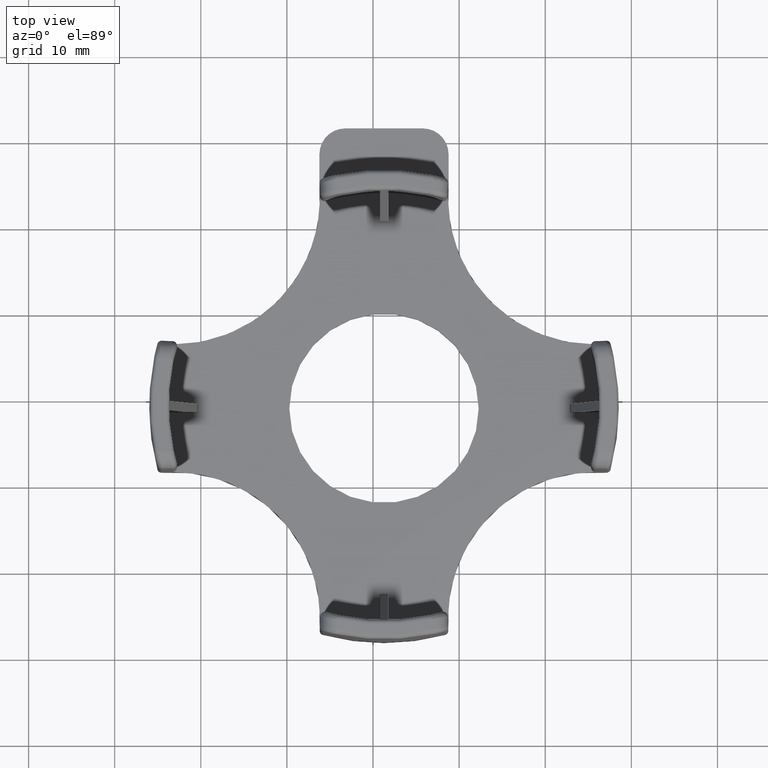
[diagram: clean part render]
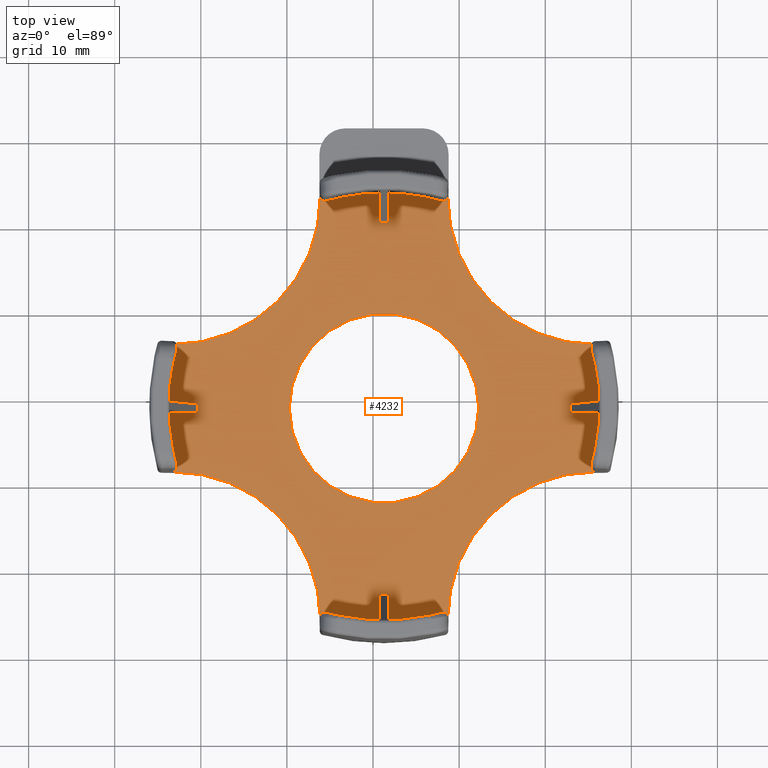
[diagram: same view with one face highlighted and labeled with its STEP entity id]
A machine part, top view. The second image highlights one B-rep face of the part: STEP entity #4232.
In plain terms, the highlighted planar face has unit normal (0, 0, 1).
Its self-contained STEP definition (entity closure, byte-faithful):
#466=CARTESIAN_POINT('',(25.819142731460140,6.628825525599467,2.500000000000000));
#467=VERTEX_POINT('',#466);
#474=CARTESIAN_POINT('',(25.341879677892173,5.993433538815123,2.500000000000000));
#475=VERTEX_POINT('',#474);
#476=CARTESIAN_POINT('',(25.823195128276978,6.128841947789116,2.500000000000000));
#477=DIRECTION('',(0.0,0.0,-1.000000000000000));
#478=DIRECTION('',(-0.799565459463388,0.600578950707649,0.0));
#479=AXIS2_PLACEMENT_3D('',#476,#477,#478);
#480=CIRCLE('',#479,0.500000000000000);
#481=EDGE_CURVE('',#467,#475,#480,.F.);
#839=CARTESIAN_POINT('',(25.341879677892173,-7.547407358584231,2.500000000000000));
#840=VERTEX_POINT('',#839);
#841=CARTESIAN_POINT('',(25.819142731460150,-8.182799345368574,2.500000000000000));
#842=VERTEX_POINT('',#841);
#843=CARTESIAN_POINT('',(25.823195128276986,-7.682815767558227,2.500000000000000));
#844=DIRECTION('',(0.0,0.0,-1.000000000000000));
#845=DIRECTION('',(-0.799565459463404,-0.600578950707628,0.0));
#846=AXIS2_PLACEMENT_3D('',#843,#844,#845);
#847=CIRCLE('',#846,0.500000000000000);
#848=EDGE_CURVE('',#840,#842,#847,.F.);
#876=CARTESIAN_POINT('',(26.271106658551695,-0.276986909884550,2.500000000000000));
#877=VERTEX_POINT('',#876);
#878=CARTESIAN_POINT('',(1.276107158651716,-0.776986909884554,2.500000000000000));
#879=DIRECTION('',(0.0,0.0,1.0));
#880=DIRECTION('',(-0.955020309993769,0.296540397752828,0.0));
#881=AXIS2_PLACEMENT_3D('',#878,#879,#880);
#882=CIRCLE('',#881,25.0);
#883=EDGE_CURVE('',#877,#475,#882,.T.);
#902=CARTESIAN_POINT('',(26.271106658551695,-1.276986909884549,2.500000000000000));
#903=VERTEX_POINT('',#902);
#910=CARTESIAN_POINT('',(1.276107158651716,-0.776986909884554,2.500000000000000));
#911=DIRECTION('',(0.0,0.0,1.0));
#912=DIRECTION('',(-0.955020309993769,0.296540397752828,0.0));
#913=AXIS2_PLACEMENT_3D('',#910,#911,#912);
#914=CIRCLE('',#913,25.0);
#915=EDGE_CURVE('',#840,#903,#914,.T.);
#1318=CARTESIAN_POINT('',(8.681919594135739,-25.320022482692984,2.500000000000000));
#1319=VERTEX_POINT('',#1318);
#1326=CARTESIAN_POINT('',(8.046527607351392,-24.842759429125010,2.500000000000000));
#1327=VERTEX_POINT('',#1326);
#1328=CARTESIAN_POINT('',(8.181936016325384,-25.324074879509819,2.500000000000000));
#1329=DIRECTION('',(0.0,0.0,-1.000000000000000));
#1330=DIRECTION('',(0.600578950707640,0.799565459463396,0.0));
#1331=AXIS2_PLACEMENT_3D('',#1328,#1329,#1330);
#1332=CIRCLE('',#1331,0.500000000000000);
#1333=EDGE_CURVE('',#1319,#1327,#1332,.F.);
#1680=CARTESIAN_POINT('',(-5.494313290047965,-24.842759429125010,2.500000000000000));
#1681=VERTEX_POINT('',#1680);
#1682=CARTESIAN_POINT('',(-6.129705276832304,-25.320022482692984,2.500000000000000));
#1683=VERTEX_POINT('',#1682);
#1684=CARTESIAN_POINT('',(-5.629721699021957,-25.324074879509819,2.500000000000000));
#1685=DIRECTION('',(0.0,0.0,-1.000000000000000));
#1686=DIRECTION('',(-0.600578950707630,0.799565459463402,0.0));
#1687=AXIS2_PLACEMENT_3D('',#1684,#1685,#1686);
#1688=CIRCLE('',#1687,0.500000000000000);
#1689=EDGE_CURVE('',#1681,#1683,#1688,.F.);
#1717=CARTESIAN_POINT('',(1.776107158651718,-25.771986409784525,2.500000000000000));
#1718=VERTEX_POINT('',#1717);
#1719=CARTESIAN_POINT('',(1.276107158651716,-0.776986909884554,2.500000000000000));
#1720=DIRECTION('',(0.0,0.0,1.0));
#1721=DIRECTION('',(0.296540397752828,0.955020309993769,0.0));
#1722=AXIS2_PLACEMENT_3D('',#1719,#1720,#1721);
#1723=CIRCLE('',#1722,25.0);
#1724=EDGE_CURVE('',#1718,#1327,#1723,.T.);
#1743=CARTESIAN_POINT('',(0.776107158651718,-25.771986409784525,2.500000000000000));
#1744=VERTEX_POINT('',#1743);
#1751=CARTESIAN_POINT('',(1.276107158651716,-0.776986909884554,2.500000000000000));
#1752=DIRECTION('',(0.0,0.0,1.0));
#1753=DIRECTION('',(0.296540397752828,0.955020309993769,0.0));
#1754=AXIS2_PLACEMENT_3D('',#1751,#1752,#1753);
#1755=CIRCLE('',#1754,25.0);
#1756=EDGE_CURVE('',#1681,#1744,#1755,.T.);
#2145=CARTESIAN_POINT('',(25.681361239687661,-25.182240990920498,2.500000000000000));
#2146=DIRECTION('',(0.0,0.0,1.000000000000000));
#2147=DIRECTION('',(-0.105430152932953,-0.994426710649173,0.0));
#2148=AXIS2_PLACEMENT_3D('',#2145,#2146,#2147);
#2149=CIRCLE('',#2148,17.0);
#2150=EDGE_CURVE('',#842,#1319,#2149,.T.);
#2259=CARTESIAN_POINT('',(8.681919594135739,23.766048662923872,2.500000000000000));
#2260=VERTEX_POINT('',#2259);
#2267=CARTESIAN_POINT('',(25.681361239687661,23.628267171151389,2.500000000000000));
#2268=DIRECTION('',(0.0,0.0,1.000000000000000));
#2269=DIRECTION('',(0.994426710649173,-0.105430152932953,0.0));
#2270=AXIS2_PLACEMENT_3D('',#2267,#2268,#2269);
#2271=CIRCLE('',#2270,17.0);
#2272=EDGE_CURVE('',#2260,#467,#2271,.T.);
#2757=CARTESIAN_POINT('',(-6.129705276832304,23.766048662923886,2.500000000000000));
#2758=VERTEX_POINT('',#2757);
#2765=CARTESIAN_POINT('',(-5.494313290047959,23.288785609355898,2.500000000000000));
#2766=VERTEX_POINT('',#2765);
#2767=CARTESIAN_POINT('',(-5.629721699021955,23.770101059740721,2.500000000000000));
#2768=DIRECTION('',(0.0,0.0,-1.0));
#2769=DIRECTION('',(-0.600578950707623,-0.799565459463408,0.0));
#2770=AXIS2_PLACEMENT_3D('',#2767,#2768,#2769);
#2771=CIRCLE('',#2770,0.500000000000000);
#2772=EDGE_CURVE('',#2758,#2766,#2771,.F.);
#3150=CARTESIAN_POINT('',(8.046527607351390,23.288785609355898,2.500000000000000));
#3151=VERTEX_POINT('',#3150);
#3152=CARTESIAN_POINT('',(8.181936016325382,23.770101059740707,2.500000000000000));
#3153=DIRECTION('',(0.0,0.0,-1.0));
#3154=DIRECTION('',(0.600578950707637,-0.799565459463397,0.0));
#3155=AXIS2_PLACEMENT_3D('',#3152,#3153,#3154);
#3156=CIRCLE('',#3155,0.500000000000000);
#3157=EDGE_CURVE('',#3151,#2260,#3156,.F.);
#3180=CARTESIAN_POINT('',(0.776107158651717,24.218012590015412,2.500000000000000));
#3181=VERTEX_POINT('',#3180);
#3182=CARTESIAN_POINT('',(1.276107158651716,-0.776986909884554,2.500000000000000));
#3183=DIRECTION('',(0.0,0.0,1.000000000000000));
#3184=DIRECTION('',(-0.296540397752827,-0.955020309993769,0.0));
#3185=AXIS2_PLACEMENT_3D('',#3182,#3183,#3184);
#3186=CIRCLE('',#3185,24.999999999999993);
#3187=EDGE_CURVE('',#3181,#2766,#3186,.T.);
#3206=CARTESIAN_POINT('',(1.776107158651717,24.218012590015412,2.500000000000000));
#3207=VERTEX_POINT('',#3206);
#3214=CARTESIAN_POINT('',(1.276107158651716,-0.776986909884554,2.500000000000000));
#3215=DIRECTION('',(0.0,0.0,1.000000000000000));
#3216=DIRECTION('',(-0.296540397752827,-0.955020309993769,0.0));
#3217=AXIS2_PLACEMENT_3D('',#3214,#3215,#3216);
#3218=CIRCLE('',#3217,24.999999999999993);
#3219=EDGE_CURVE('',#3151,#3207,#3218,.T.);
#3592=CARTESIAN_POINT('',(-22.789665360588742,5.993433538815125,2.500000000000000));
#3593=VERTEX_POINT('',#3592);
#3594=CARTESIAN_POINT('',(-23.266928414156713,6.628825525599467,2.500000000000000));
#3595=VERTEX_POINT('',#3594);
#3596=CARTESIAN_POINT('',(-23.270980810973548,6.128841947789116,2.500000000000000));
#3597=DIRECTION('',(0.0,0.0,-1.0));
#3598=DIRECTION('',(0.799565459463399,0.600578950707635,0.0));
#3599=AXIS2_PLACEMENT_3D('',#3596,#3597,#3598);
#3600=CIRCLE('',#3599,0.500000000000000);
#3601=EDGE_CURVE('',#3593,#3595,#3600,.F.);
#3624=CARTESIAN_POINT('',(-23.266928414156713,-8.182799345368574,2.500000000000000));
#3625=VERTEX_POINT('',#3624);
#3626=CARTESIAN_POINT('',(-22.789665360588742,-7.547407358584232,2.500000000000000));
#3627=VERTEX_POINT('',#3626);
#3628=CARTESIAN_POINT('',(-23.270980810973548,-7.682815767558225,2.500000000000000));
#3629=DIRECTION('',(0.0,0.0,-1.0));
#3630=DIRECTION('',(0.799565459463399,-0.600578950707635,0.0));
#3631=AXIS2_PLACEMENT_3D('',#3628,#3629,#3630);
#3632=CIRCLE('',#3631,0.500000000000000);
#3633=EDGE_CURVE('',#3625,#3627,#3632,.F.);
#3699=CARTESIAN_POINT('',(-23.129146922384226,23.628267171151389,2.500000000000000));
#3700=DIRECTION('',(0.0,0.0,1.000000000000000));
#3701=DIRECTION('',(0.105430152932953,0.994426710649173,0.0));
#3702=AXIS2_PLACEMENT_3D('',#3699,#3700,#3701);
#3703=CIRCLE('',#3702,17.0);
#3704=EDGE_CURVE('',#3595,#2758,#3703,.T.);
#3728=CARTESIAN_POINT('',(-23.718892341248257,-1.276986909884558,2.500000000000000));
#3729=VERTEX_POINT('',#3728);
#3730=CARTESIAN_POINT('',(1.276107158651716,-0.776986909884554,2.500000000000000));
#3731=DIRECTION('',(0.0,0.0,1.000000000000000));
#3732=DIRECTION('',(0.955020309993769,-0.296540397752828,0.0));
#3733=AXIS2_PLACEMENT_3D('',#3730,#3731,#3732);
#3734=CIRCLE('',#3733,24.999999999999996);
#3735=EDGE_CURVE('',#3729,#3627,#3734,.T.);
#3754=CARTESIAN_POINT('',(-23.718892341248257,-0.276986909884558,2.500000000000000));
#3755=VERTEX_POINT('',#3754);
#3762=CARTESIAN_POINT('',(1.276107158651716,-0.776986909884554,2.500000000000000));
#3763=DIRECTION('',(0.0,0.0,1.000000000000000));
#3764=DIRECTION('',(0.955020309993769,-0.296540397752828,0.0));
#3765=AXIS2_PLACEMENT_3D('',#3762,#3763,#3764);
#3766=CIRCLE('',#3765,24.999999999999996);
#3767=EDGE_CURVE('',#3593,#3755,#3766,.T.);
#3929=CARTESIAN_POINT('',(-20.319698227082682,-1.276986909884550,2.500000000000000));
#3930=VERTEX_POINT('',#3929);
#3931=CARTESIAN_POINT('',(-20.319698227082682,-1.276986909884550,2.500000000000000));
#3932=DIRECTION('',(-1.0,0.0,0.0));
#3933=VECTOR('',#3932,3.399194114165574);
#3934=LINE('',#3931,#3933);
#3935=EDGE_CURVE('',#3930,#3729,#3934,.T.);
#3954=CARTESIAN_POINT('',(-20.319698227082682,-0.276986909884550,2.500000000000000));
#3955=VERTEX_POINT('',#3954);
#3956=CARTESIAN_POINT('',(-20.319698227082682,-0.276986909884550,2.500000000000000));
#3957=DIRECTION('',(0.0,-1.0,0.0));
#3958=VECTOR('',#3957,1.0);
#3959=LINE('',#3956,#3958);
#3960=EDGE_CURVE('',#3955,#3930,#3959,.T.);
#3978=CARTESIAN_POINT('',(-23.718892341248257,-0.276986909884558,2.500000000000000));
#3979=DIRECTION('',(1.0,0.0,0.0));
#3980=VECTOR('',#3979,3.399194114165574);
#3981=LINE('',#3978,#3980);
#3982=EDGE_CURVE('',#3755,#3955,#3981,.T.);
#3992=CARTESIAN_POINT('',(1.776107158651711,-22.372792295618957,2.500000000000000));
#3993=VERTEX_POINT('',#3992);
#3994=CARTESIAN_POINT('',(1.776107158651711,-22.372792295618957,2.500000000000000));
#3995=DIRECTION('',(0.0,-1.0,0.0));
#3996=VECTOR('',#3995,3.399194114165567);
#3997=LINE('',#3994,#3996);
#3998=EDGE_CURVE('',#3993,#1718,#3997,.T.);
#4017=CARTESIAN_POINT('',(0.776107158651710,-22.372792295618954,2.500000000000000));
#4018=VERTEX_POINT('',#4017);
#4019=CARTESIAN_POINT('',(0.776107158651710,-22.372792295618954,2.500000000000000));
#4020=DIRECTION('',(1.0,0.0,0.0));
#4021=VECTOR('',#4020,1.000000000000000);
#4022=LINE('',#4019,#4021);
#4023=EDGE_CURVE('',#4018,#3993,#4022,.T.);
#4041=CARTESIAN_POINT('',(0.776107158651718,-25.771986409784525,2.500000000000000));
#4042=DIRECTION('',(0.0,1.0,0.0));
#4043=VECTOR('',#4042,3.399194114165571);
#4044=LINE('',#4041,#4043);
#4045=EDGE_CURVE('',#1744,#4018,#4044,.T.);
#4055=CARTESIAN_POINT('',(22.871912544386113,-0.276986909884557,2.500000000000000));
#4056=VERTEX_POINT('',#4055);
#4057=CARTESIAN_POINT('',(22.871912544386113,-0.276986909884557,2.500000000000000));
#4058=DIRECTION('',(1.0,0.0,0.0));
#4059=VECTOR('',#4058,3.399194114165582);
#4060=LINE('',#4057,#4059);
#4061=EDGE_CURVE('',#4056,#877,#4060,.T.);
#4080=CARTESIAN_POINT('',(22.871912544386113,-1.276986909884557,2.500000000000000));
#4081=VERTEX_POINT('',#4080);
#4082=CARTESIAN_POINT('',(22.871912544386113,-1.276986909884557,2.500000000000000));
#4083=DIRECTION('',(0.0,1.0,0.0));
#4084=VECTOR('',#4083,1.000000000000000);
#4085=LINE('',#4082,#4084);
#4086=EDGE_CURVE('',#4081,#4056,#4085,.T.);
#4104=CARTESIAN_POINT('',(26.271106658551695,-1.276986909884549,2.500000000000000));
#4105=DIRECTION('',(-1.0,0.0,0.0));
#4106=VECTOR('',#4105,3.399194114165582);
#4107=LINE('',#4104,#4106);
#4108=EDGE_CURVE('',#903,#4081,#4107,.T.);
#4118=CARTESIAN_POINT('',(1.776107158651724,20.818818475849845,2.500000000000000));
#4119=VERTEX_POINT('',#4118);
#4120=CARTESIAN_POINT('',(1.776107158651717,24.218012590015412,2.500000000000000));
#4121=DIRECTION('',(0.0,-1.0,0.0));
#4122=VECTOR('',#4121,3.399194114165567);
#4123=LINE('',#4120,#4122);
#4124=EDGE_CURVE('',#3207,#4119,#4123,.T.);
#4142=CARTESIAN_POINT('',(0.776107158651724,20.818818475849845,2.500000000000000));
#4143=VERTEX_POINT('',#4142);
#4150=CARTESIAN_POINT('',(1.776107158651724,20.818818475849845,2.500000000000000));
#4151=DIRECTION('',(-1.0,0.0,0.0));
#4152=VECTOR('',#4151,1.000000000000000);
#4153=LINE('',#4150,#4152);
#4154=EDGE_CURVE('',#4119,#4143,#4153,.T.);
#4165=CARTESIAN_POINT('',(0.776107158651724,20.818818475849845,2.500000000000000));
#4166=DIRECTION('',(0.0,1.0,0.0));
#4167=VECTOR('',#4166,3.399194114165567);
#4168=LINE('',#4165,#4167);
#4169=EDGE_CURVE('',#4143,#3181,#4168,.T.);
#4176=CARTESIAN_POINT('',(1.276107158651710,28.551696380516933,2.500000000000000));
#4177=DIRECTION('',(0.0,0.0,1.0));
#4178=DIRECTION('',(1.0,0.0,0.0));
#4179=AXIS2_PLACEMENT_3D('',#4176,#4177,#4178);
#4180=PLANE('',#4179);
#4181=ORIENTED_EDGE('',*,*,#3935,.T.);
#4182=ORIENTED_EDGE('',*,*,#3735,.T.);
#4183=ORIENTED_EDGE('',*,*,#3633,.F.);
#4184=CARTESIAN_POINT('',(-23.129146922384226,-25.182240990920498,2.500000000000000));
#4185=DIRECTION('',(0.0,0.0,1.000000000000000));
#4186=DIRECTION('',(-0.994426710649173,0.105430152932953,0.0));
#4187=AXIS2_PLACEMENT_3D('',#4184,#4185,#4186);
#4188=CIRCLE('',#4187,17.0);
#4189=EDGE_CURVE('',#1683,#3625,#4188,.T.);
#4190=ORIENTED_EDGE('',*,*,#4189,.F.);
#4191=ORIENTED_EDGE('',*,*,#1689,.F.);
#4192=ORIENTED_EDGE('',*,*,#1756,.T.);
#4193=ORIENTED_EDGE('',*,*,#4045,.T.);
#4194=ORIENTED_EDGE('',*,*,#4023,.T.);
#4195=ORIENTED_EDGE('',*,*,#3998,.T.);
#4196=ORIENTED_EDGE('',*,*,#1724,.T.);
#4197=ORIENTED_EDGE('',*,*,#1333,.F.);
#4198=ORIENTED_EDGE('',*,*,#2150,.F.);
#4199=ORIENTED_EDGE('',*,*,#848,.F.);
#4200=ORIENTED_EDGE('',*,*,#915,.T.);
#4201=ORIENTED_EDGE('',*,*,#4108,.T.);
#4202=ORIENTED_EDGE('',*,*,#4086,.T.);
#4203=ORIENTED_EDGE('',*,*,#4061,.T.);
#4204=ORIENTED_EDGE('',*,*,#883,.T.);
#4205=ORIENTED_EDGE('',*,*,#481,.F.);
#4206=ORIENTED_EDGE('',*,*,#2272,.F.);
#4207=ORIENTED_EDGE('',*,*,#3157,.F.);
#4208=ORIENTED_EDGE('',*,*,#3219,.T.);
#4209=ORIENTED_EDGE('',*,*,#4124,.T.);
#4210=ORIENTED_EDGE('',*,*,#4154,.T.);
#4211=ORIENTED_EDGE('',*,*,#4169,.T.);
#4212=ORIENTED_EDGE('',*,*,#3187,.T.);
#4213=ORIENTED_EDGE('',*,*,#2772,.F.);
#4214=ORIENTED_EDGE('',*,*,#3704,.F.);
#4215=ORIENTED_EDGE('',*,*,#3601,.F.);
#4216=ORIENTED_EDGE('',*,*,#3767,.T.);
#4217=ORIENTED_EDGE('',*,*,#3982,.T.);
#4218=ORIENTED_EDGE('',*,*,#3960,.T.);
#4219=EDGE_LOOP('',(#4181,#4182,#4183,#4190,#4191,#4192,#4193,#4194,#4195,#4196,#4197,#4198,#4199,#4200,#4201,#4202,#4203,#4204,#4205,#4206,#4207,#4208,#4209,#4210,#4211,#4212,#4213,#4214,#4215,#4216,#4217,#4218));
#4220=FACE_OUTER_BOUND('',#4219,.T.);
#4221=CARTESIAN_POINT('',(12.276107158651717,-0.776986909884553,2.500000000000000));
#4222=VERTEX_POINT('',#4221);
#4223=CARTESIAN_POINT('',(1.276107158651716,-0.776986909884554,2.500000000000000));
#4224=DIRECTION('',(0.0,0.0,-1.0));
#4225=DIRECTION('',(-1.0,0.0,0.0));
#4226=AXIS2_PLACEMENT_3D('',#4223,#4224,#4225);
#4227=CIRCLE('',#4226,11.0);
#4228=EDGE_CURVE('',#4222,#4222,#4227,.T.);
#4229=ORIENTED_EDGE('',*,*,#4228,.T.);
#4230=EDGE_LOOP('',(#4229));
#4231=FACE_BOUND('',#4230,.T.);
#4232=ADVANCED_FACE('',(#4220,#4231),#4180,.T.);